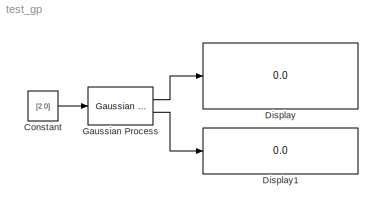
MODEL test_gp
KIND model
BLOCK [Constant] Constant
  SID = 2
  Value = [2 0]
BLOCK [Display] Display
  Decimation = 1
  Ports = [1]
  SID = 3
BLOCK [Display] Display1
  Decimation = 1
  Ports = [1]
  SID = 4
BLOCK [Reference] Gaussian Process  REF=simlib_vpc_gp/Gaussian Process
  Ports = [1, 2]
  RTWMemSecDataConstants = Inherit from model
  RTWMemSecDataInternal = Inherit from model
  RTWMemSecDataParameters = Inherit from model
  RTWMemSecFuncExecute = Inherit from model
  RTWMemSecFuncInitTerm = Inherit from model
  SID = 1
  SourceBlock = simlib_vpc_gp/Gaussian Process
  SourceProductName = VPC Library
  SourceType = Gaussian Process [V1]
  X = [1 2; 2 0]
  Y = [3 4; 5 6]
  hyp = [0.1 0.1 0.1; 0.1 0.1 0.1]
  kernel = Squared Exponential ARD
  sigman = [0.01 0.01]
LINE Constant:1 -> Gaussian Process:1
LINE Gaussian Process:1 -> Display:1
LINE Gaussian Process:2 -> Display1:1
